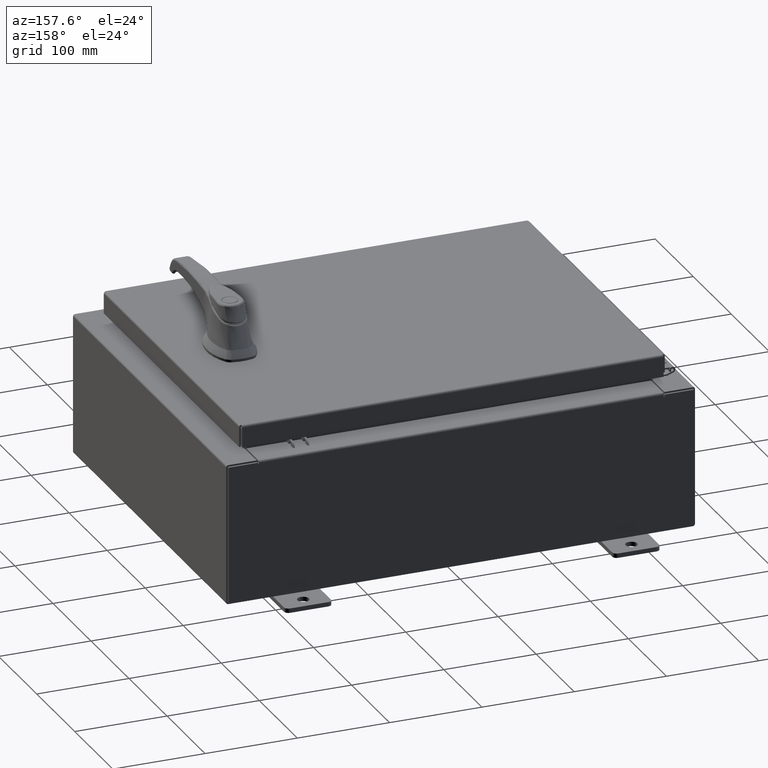
[diagram: clean part render]
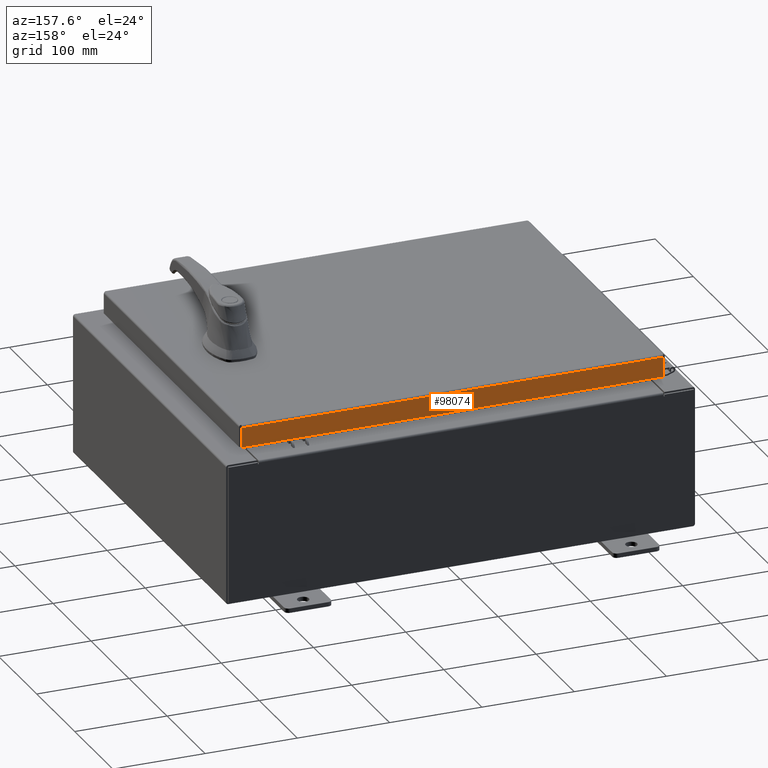
[diagram: same view with one face highlighted and labeled with its STEP entity id]
A machine part, auxiliary view. The second image highlights one B-rep face of the part: STEP entity #98074.
In plain terms, the highlighted planar face has unit normal (0, -1, -0).
Its self-contained STEP definition (entity closure, byte-faithful):
#817 = VERTEX_POINT ( 'NONE', #1188 ) ;
#1188 = CARTESIAN_POINT ( 'NONE',  ( 8.989157864376267100, 7.094000000000001200, -0.08769999999999997200 ) ) ;
#1377 = CARTESIAN_POINT ( 'NONE',  ( -8.989157864376267100, 7.094000000000004700, -0.9377000000000020900 ) ) ;
#5275 = EDGE_LOOP ( 'NONE', ( #100211, #41684, #85253, #41238 ) ) ;
#7154 = VECTOR ( 'NONE', #68904, 39.37007874015748100 ) ;
#10235 = EDGE_CURVE ( 'NONE', #83886, #42032, #29862, .T. ) ;
#11028 = VERTEX_POINT ( 'NONE', #83749 ) ;
#15829 = CARTESIAN_POINT ( 'NONE',  ( -9.077999999999999400, 7.094000000000001200, -0.08769999999999997200 ) ) ;
#20107 = LINE ( 'NONE', #81327, #91268 ) ;
#29862 = LINE ( 'NONE', #99598, #95884 ) ;
#31751 = DIRECTION ( 'NONE',  ( 1.000000000000000000, -8.758115402030108600E-047, 1.278955053213606700E-016 ) ) ;
#40832 = DIRECTION ( 'NONE',  ( -1.000000000000000000, -4.858276889142553200E-031, -1.863630459400616000E-045 ) ) ;
#41238 = ORIENTED_EDGE ( 'NONE', *, *, #10235, .F. ) ;
#41684 = ORIENTED_EDGE ( 'NONE', *, *, #97266, .T. ) ;
#42032 = VERTEX_POINT ( 'NONE', #1377 ) ;
#46348 = CARTESIAN_POINT ( 'NONE',  ( -3.446461625157728000E-030, 7.094000000000001200, 2.720829407369997300E-014 ) ) ;
#46707 = DIRECTION ( 'NONE',  ( 0.0000000000000000000, 3.798629886902789300E-015, -1.000000000000000000 ) ) ;
#47671 = LINE ( 'NONE', #15829, #89069 ) ;
#50037 = DIRECTION ( 'NONE',  ( -0.0000000000000000000, 3.798629886902789300E-015, -1.000000000000000000 ) ) ;
#60528 = CARTESIAN_POINT ( 'NONE',  ( 8.989157864376267100, 7.094000000000001200, 2.720829407369997300E-014 ) ) ;
#62803 = EDGE_CURVE ( 'NONE', #42032, #11028, #20107, .T. ) ;
#62924 = PLANE ( 'NONE',  #99544 ) ;
#68904 = DIRECTION ( 'NONE',  ( 0.0000000000000000000, 3.798629886902789300E-015, -1.000000000000000000 ) ) ;
#70667 = LINE ( 'NONE', #60528, #7154 ) ;
#73155 = EDGE_CURVE ( 'NONE', #817, #83886, #47671, .T. ) ;
#81327 = CARTESIAN_POINT ( 'NONE',  ( -9.077999999999999400, 7.094000000000004700, -0.9377000000000020900 ) ) ;
#83749 = CARTESIAN_POINT ( 'NONE',  ( 8.989157864376267100, 7.094000000000004700, -0.9376999999999997600 ) ) ;
#83886 = VERTEX_POINT ( 'NONE', #95529 ) ;
#85253 = ORIENTED_EDGE ( 'NONE', *, *, #62803, .F. ) ;
#89069 = VECTOR ( 'NONE', #40832, 39.37007874015748100 ) ;
#91268 = VECTOR ( 'NONE', #31751, 39.37007874015748100 ) ;
#95529 = CARTESIAN_POINT ( 'NONE',  ( -8.989157864376267100, 7.094000000000001200, -0.08769999999999997200 ) ) ;
#95884 = VECTOR ( 'NONE', #50037, 39.37007874015748100 ) ;
#96261 = DIRECTION ( 'NONE',  ( 4.858276889142553200E-031, -1.000000000000000000, -3.798629886902789300E-015 ) ) ;
#97266 = EDGE_CURVE ( 'NONE', #817, #11028, #70667, .T. ) ;
#97742 = FACE_OUTER_BOUND ( 'NONE', #5275, .T. ) ;
#98074 = ADVANCED_FACE ( 'NONE', ( #97742 ), #62924, .F. ) ;
#99544 = AXIS2_PLACEMENT_3D ( 'NONE', #46348, #96261, #46707 ) ;
#99598 = CARTESIAN_POINT ( 'NONE',  ( -8.989157864376267100, 7.094000000000001200, -0.07469999999999972500 ) ) ;
#100211 = ORIENTED_EDGE ( 'NONE', *, *, #73155, .F. ) ;